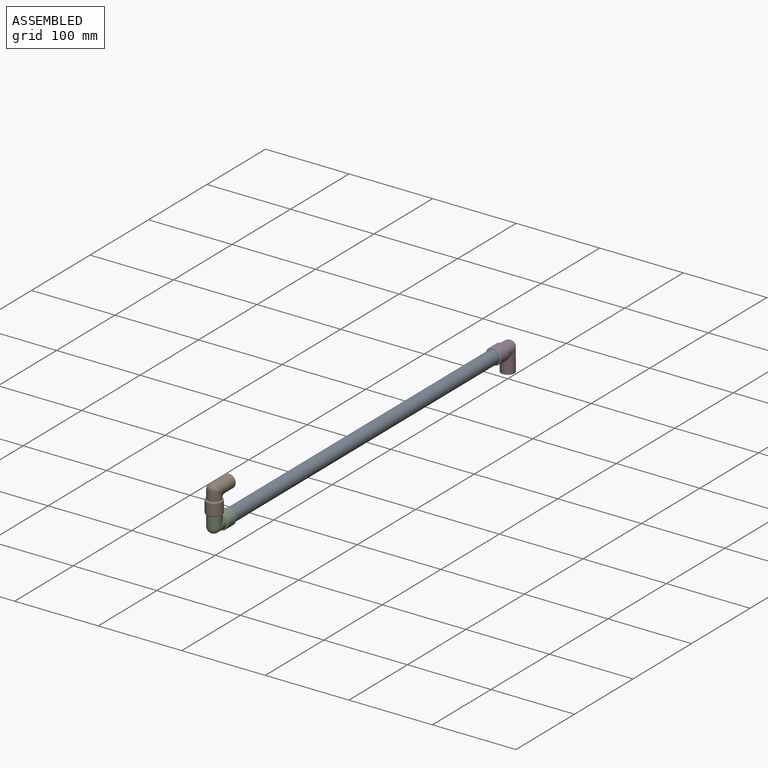
[diagram: assembled view]
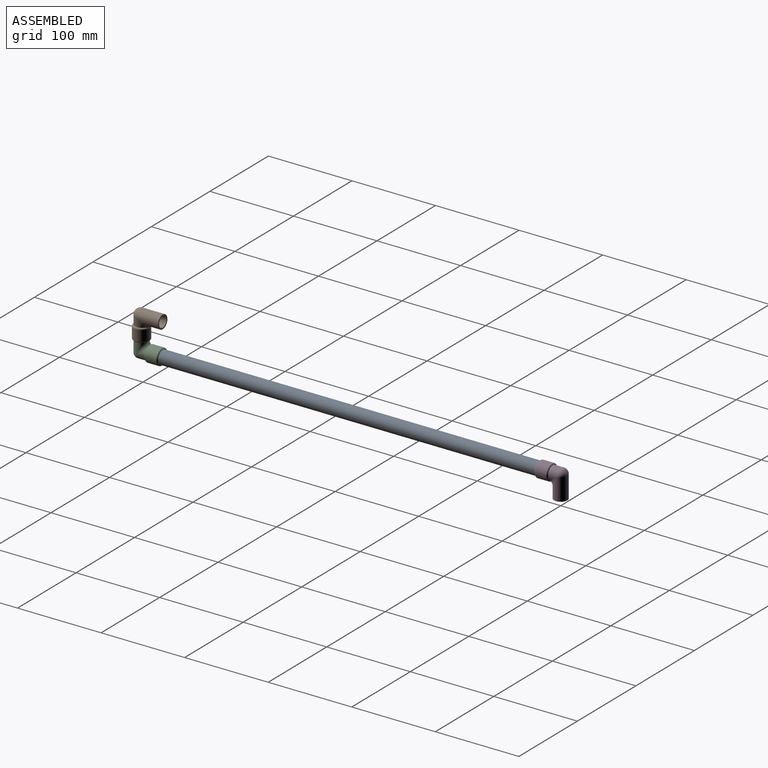
[diagram: assembled view, second angle]
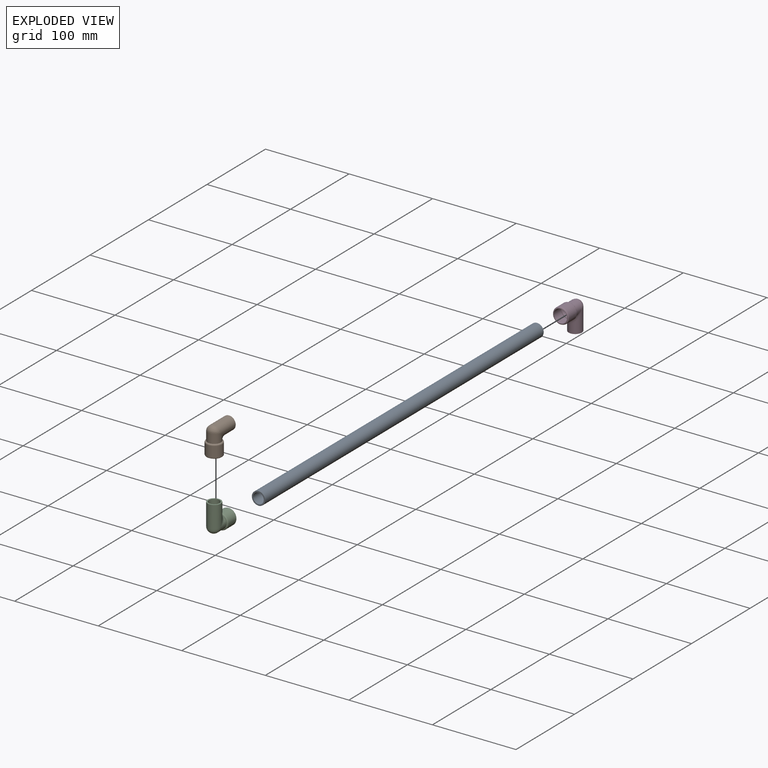
[diagram: exploded view]
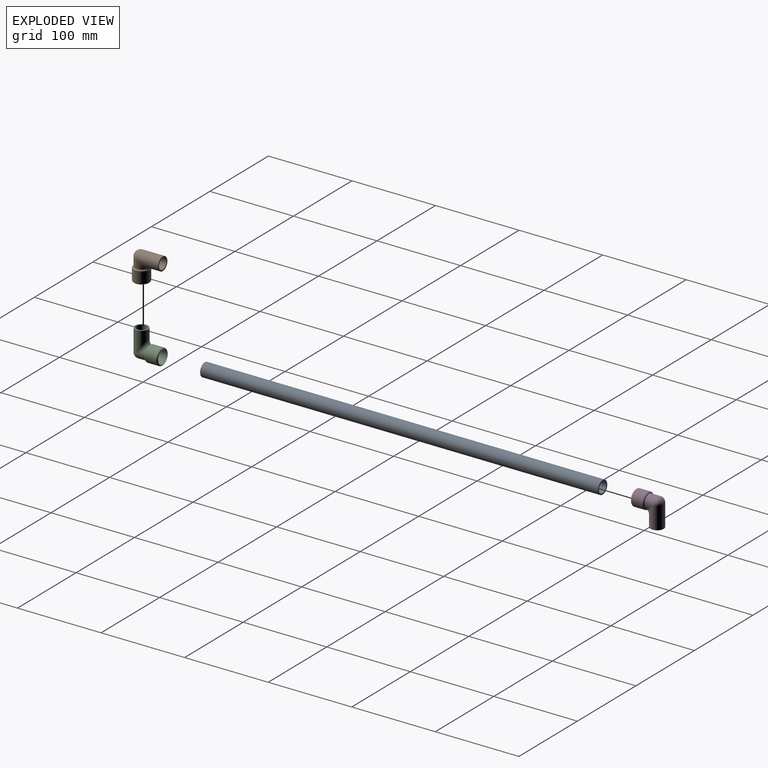
[diagram: exploded view, second angle]
ASSEMBLY  parts=4 mates=3
PART A: 4 faces, bbox 15.9x476.3x15.9 mm
  f0: cylinder r=6.35mm len=476.25mm, axis (0,1,0), area 19001.5mm2, adj f2,f3
  f1: cylinder r=7.94mm len=476.25mm, axis (0,1,0), area 23751.9mm2, adj f2,f3
  f2: plane 15.88x15.88mm, normal (0,-1,0), area 71.3mm2, adj f0,f1
  f3: plane 15.88x15.88mm, normal (0,1,0), area 71.3mm2, adj f0,f1
PART B: 16 faces, bbox 20.6x40.5x35.7 mm
  f0: cylinder r=6.35mm len=39.26mm, axis (0,1,0), area 304.6mm2, adj f1,f12,f13,f14,f15
  f1: bspline ~4.08x4.08mm, area 0.3mm2, adj f0,f2
  f2: cylinder r=6.35mm len=25.4mm, axis (0,0,1), area 852.1mm2, adj f1,f3,f13,f14
  f3: plane 15.88x15.88mm, normal (0,0,-1), area 71.3mm2, adj f2,f4
  f4: cylinder r=7.94mm len=25.4mm, axis (0,0,1), area 1040mm2, adj f3,f5,f11
  f5: bspline ~15.88x14.29mm, area 90.4mm2, adj f4,f6,f10
  f6: torus R=7.94mm, axis (0,1,0), area 129.1mm2, adj f5,f7,f10
  f7: cylinder r=9.53mm len=19.05mm, axis (0,1,0), area 760.1mm2, adj f6,f8
  f8: torus R=7.94mm, axis (0,1,0), area 140.2mm2, adj f7,f9
  f9: cylinder r=7.94mm len=15.88mm, axis (0,1,0), area 633.4mm2, adj f8,f15
  f10: cylinder r=7.94mm len=15.88mm, axis (0,1,0), area 292.7mm2, adj f5,f6,f11
  f11: bspline ~15.88x7.94mm, area 80.8mm2, adj f4,f10
  f12: bspline ~8.4x2.45mm, area 0mm2, adj f0,f13
  f13: bspline ~12.7x12.69mm, area 103.2mm2, adj f0,f2,f12
  f14: sphere r=6.35mm, area 96.9mm2, adj f0,f2
  f15: torus R=7.94mm, axis (0,1,0), area 108.5mm2, adj f0,f9
PART C: same geometry as B
PART D: same geometry as B
PLACE A rot(axis=(0,0,1),180deg) t=(0,-488.95,25.4)mm
PLACE B rot(axis=(0,-0.71,0.71),180deg) t=(0,-476.25,63.5)mm
PLACE C rot(axis=(0,-1,0),180deg) t=(0,-501.65,50.8)mm
PLACE D rot(axis=(0,0,1),180deg) t=(0,0,0)mm
MATE fastened D.f8 <-> A.f0  axis (0,-1,0) through (0,-12.7,25.4)mm
MATE fastened C.f8 <-> A.f0  axis (0,1,0) through (0,-488.95,25.4)mm
MATE fastened B.f8 <-> C.f2  axis (0,0,-1) through (0,-501.65,50.8)mm
